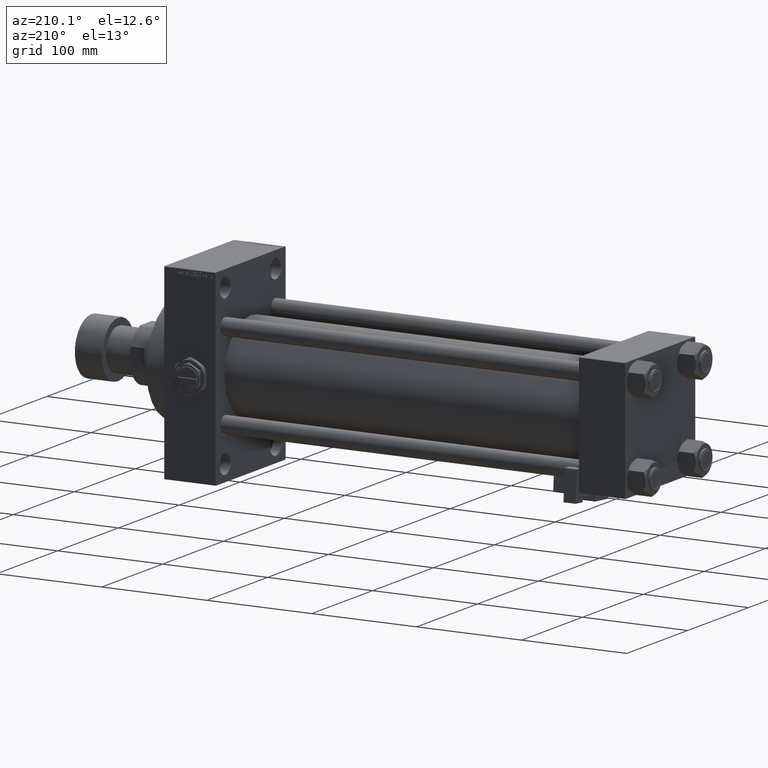
[diagram: clean part render]
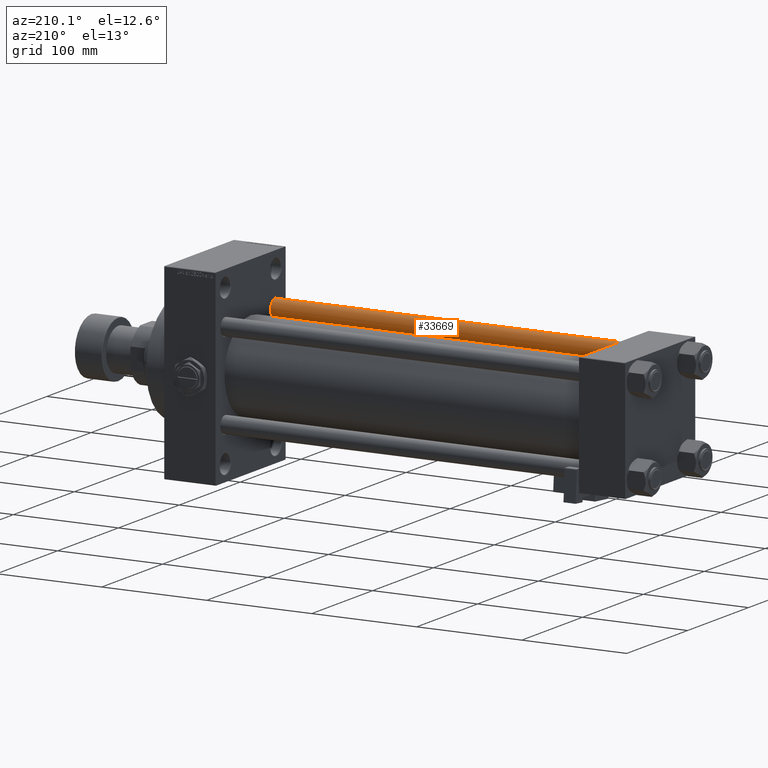
[diagram: same view with one face highlighted and labeled with its STEP entity id]
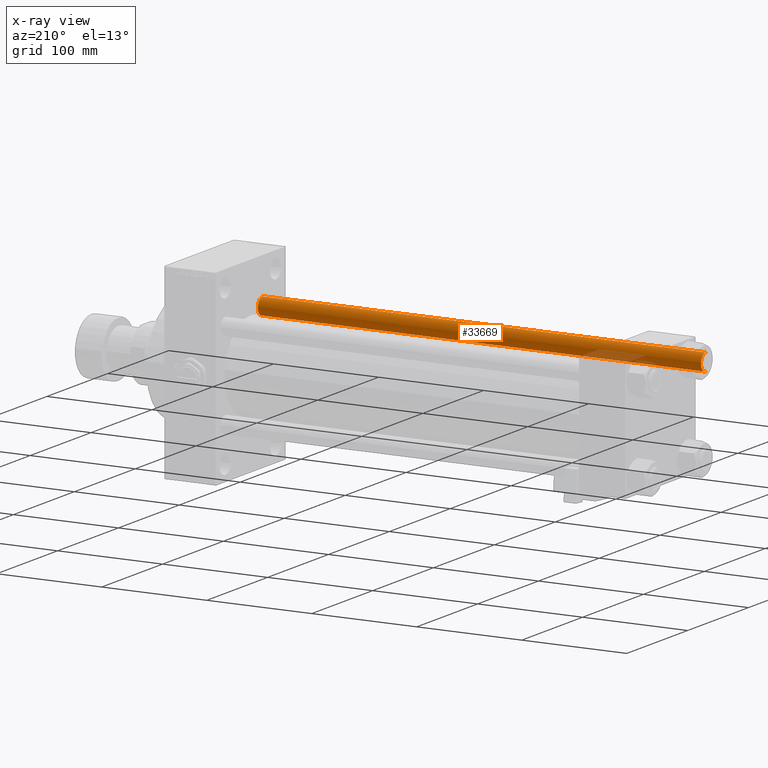
[diagram: x-ray of the same camera — body ghosted, the highlighted face saturated]
A machine part, auxiliary view. The second image highlights one B-rep face of the part: STEP entity #33669.
The next image is the same camera in x-ray: the body ghosted, the highlighted face saturated — about 6% of this face is hidden behind the body in this view.
In plain terms, the highlighted cylindrical surface (edge-blend (fillet) strip) has radius 8 mm, axis along (-1, 0, -0).
Its self-contained STEP definition (entity closure, byte-faithful):
#1651 = CARTESIAN_POINT ( 'NONE',  ( -8.000000000000000000, 0.000000000000000000, 422.5000000000002842 ) ) ;
#3439 = EDGE_CURVE ( 'NONE', #33978, #46345, #10563, .T. ) ;
#3736 = CARTESIAN_POINT ( 'NONE',  ( -8.000000000000000000, 0.000000000000000000, 0.5000000000003890221 ) ) ;
#6137 = VERTEX_POINT ( 'NONE', #3736 ) ;
#8095 = EDGE_LOOP ( 'NONE', ( #40136, #47238, #28193, #18125 ) ) ;
#10563 = LINE ( 'NONE', #35208, #49034 ) ;
#13572 = DIRECTION ( 'NONE',  ( -1.000000000000000000, 0.000000000000000000, 0.000000000000000000 ) ) ;
#13820 = CARTESIAN_POINT ( 'NONE',  ( -8.000000000000000000, 0.000000000000000000, 423.0000000000000000 ) ) ;
#18125 = ORIENTED_EDGE ( 'NONE', *, *, #33442, .T. ) ;
#18199 = CARTESIAN_POINT ( 'NONE',  ( 8.000000000000000000, 9.797174393178823685E-16, 422.5000000000002842 ) ) ;
#18719 = DIRECTION ( 'NONE',  ( 0.000000000000000000, 0.000000000000000000, -1.000000000000000000 ) ) ;
#20105 = EDGE_CURVE ( 'NONE', #33978, #23489, #31867, .T. ) ;
#21315 = CARTESIAN_POINT ( 'NONE',  ( 8.000000000000000000, 9.797174393178823685E-16, 0.5000000000003890221 ) ) ;
#23186 = CARTESIAN_POINT ( 'NONE',  ( 0.000000000000000000, 0.000000000000000000, 422.5000000000002842 ) ) ;
#23422 = CIRCLE ( 'NONE', #45999, 8.000000000000000000 ) ;
#23489 = VERTEX_POINT ( 'NONE', #1651 ) ;
#23818 = DIRECTION ( 'NONE',  ( 1.000000000000000000, 0.000000000000000000, 0.000000000000000000 ) ) ;
#25622 = FACE_OUTER_BOUND ( 'NONE', #8095, .T. ) ;
#27219 = CARTESIAN_POINT ( 'NONE',  ( 0.000000000000000000, 0.000000000000000000, 0.5000000000003890221 ) ) ;
#28193 = ORIENTED_EDGE ( 'NONE', *, *, #41692, .T. ) ;
#28475 = AXIS2_PLACEMENT_3D ( 'NONE', #37945, #34274, #13572 ) ;
#29812 = CYLINDRICAL_SURFACE ( 'NONE', #28475, 8.000000000000000000 ) ;
#31867 = CIRCLE ( 'NONE', #38545, 8.000000000000000000 ) ;
#33442 = EDGE_CURVE ( 'NONE', #6137, #46345, #23422, .T. ) ;
#33669 = ADVANCED_FACE ( 'NONE', ( #25622 ), #29812, .T. ) ;
#33978 = VERTEX_POINT ( 'NONE', #18199 ) ;
#34022 = DIRECTION ( 'NONE',  ( -0.000000000000000000, -0.000000000000000000, -1.000000000000000000 ) ) ;
#34274 = DIRECTION ( 'NONE',  ( -0.000000000000000000, -0.000000000000000000, -1.000000000000000000 ) ) ;
#34428 = DIRECTION ( 'NONE',  ( -0.000000000000000000, -0.000000000000000000, -1.000000000000000000 ) ) ;
#35048 = LINE ( 'NONE', #13820, #46176 ) ;
#35208 = CARTESIAN_POINT ( 'NONE',  ( 8.000000000000000000, 9.797174393178823685E-16, 423.0000000000000000 ) ) ;
#37945 = CARTESIAN_POINT ( 'NONE',  ( 0.000000000000000000, 0.000000000000000000, 423.0000000000000000 ) ) ;
#38545 = AXIS2_PLACEMENT_3D ( 'NONE', #23186, #18719, #50940 ) ;
#40136 = ORIENTED_EDGE ( 'NONE', *, *, #3439, .F. ) ;
#41692 = EDGE_CURVE ( 'NONE', #23489, #6137, #35048, .T. ) ;
#45999 = AXIS2_PLACEMENT_3D ( 'NONE', #27219, #47652, #23818 ) ;
#46176 = VECTOR ( 'NONE', #34022, 1000.000000000000000 ) ;
#46345 = VERTEX_POINT ( 'NONE', #21315 ) ;
#47238 = ORIENTED_EDGE ( 'NONE', *, *, #20105, .T. ) ;
#47652 = DIRECTION ( 'NONE',  ( -0.000000000000000000, -0.000000000000000000, 1.000000000000000000 ) ) ;
#49034 = VECTOR ( 'NONE', #34428, 1000.000000000000000 ) ;
#50940 = DIRECTION ( 'NONE',  ( 1.000000000000000000, 0.000000000000000000, 0.000000000000000000 ) ) ;